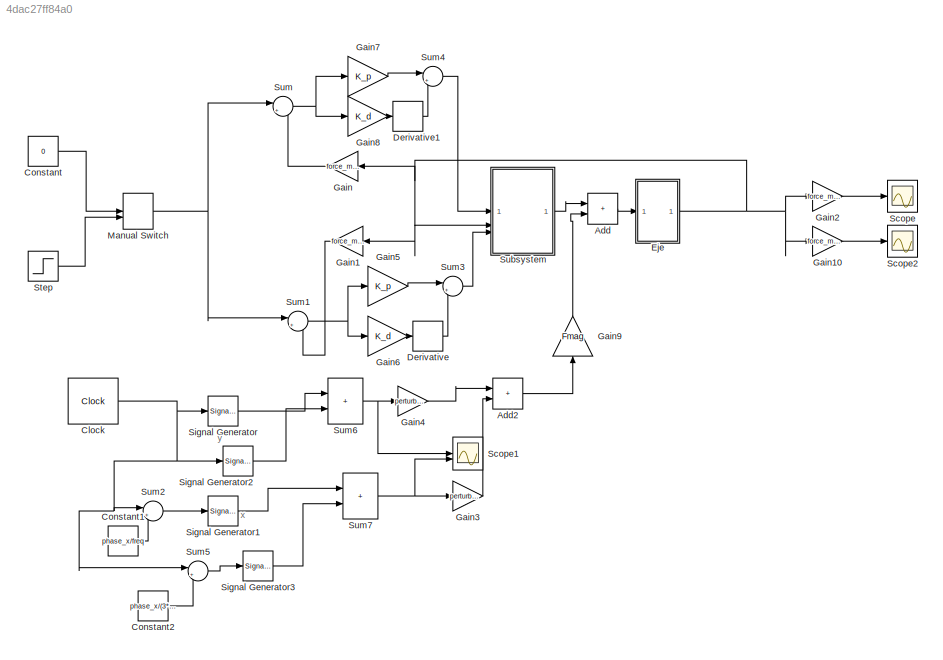
MODEL slx_4dac27ff84a0
KIND model
CONFIG AbsTol = auto
CONFIG EnableMultiTasking = off
CONFIG FixedStep = auto
CONFIG MaxStep = auto
CONFIG MinStep = auto
CONFIG RelTol = 1e-3
CONFIG SampleTimeConstraint = Unconstrained
CONFIG SolverName = VariableStepAuto
CONFIG StartTime = 0.0
CONFIG StopTime = 1
BLOCK [Sum] Add
  IconShape = rectangular
BLOCK [Sum] Add2
  IconShape = rectangular
BLOCK [Clock] Clock
  Decimation = 100
  DisplayTime = on
BLOCK [Constant] Constant
  Value = 0
BLOCK [Constant] Constant1
  Value = phase_x/freq
BLOCK [Constant] Constant2
  Value = phase_x/(3*freq)
BLOCK [Derivative] Derivative
BLOCK [Derivative] Derivative1
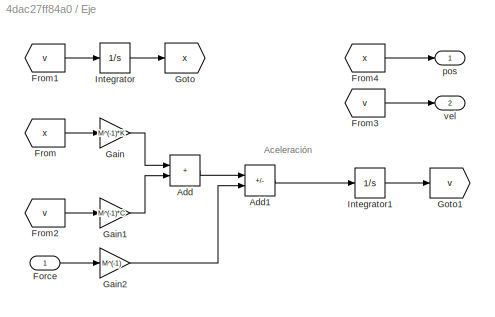
BLOCK [SubSystem] Eje
BLOCK [Sum] Eje/Add
  IconShape = rectangular
BLOCK [Sum] Eje/Add1
  IconShape = rectangular
  Inputs = -+
BLOCK [Inport] Eje/Force
BLOCK [From] Eje/From
  GotoTag = x
BLOCK [From] Eje/From1
  GotoTag = v
BLOCK [From] Eje/From2
  GotoTag = v
BLOCK [From] Eje/From3
  GotoTag = v
BLOCK [From] Eje/From4
  GotoTag = x
BLOCK [Gain] Eje/Gain
  Gain = M^(-1)*K
  Multiplication = Matrix(K*u)
BLOCK [Gain] Eje/Gain1
  Gain = M^(-1)*C
  Multiplication = Matrix(K*u)
BLOCK [Gain] Eje/Gain2
  Gain = M^(-1)
  Multiplication = Matrix(K*u) (u vector)
BLOCK [Goto] Eje/Goto
  GotoTag = x
BLOCK [Goto] Eje/Goto1
  GotoTag = v
BLOCK [Integrator] Eje/Integrator
BLOCK [Integrator] Eje/Integrator1
BLOCK [Outport] Eje/pos
BLOCK [Outport] Eje/vel
  Port = 2
BLOCK [Gain] Gain
  Gain = force_mask_x'
  Multiplication = Matrix(K*u)
  NameLocation = top
BLOCK [Gain] Gain1
  Gain = force_mask_y'
  Multiplication = Matrix(K*u)
  NameLocation = top
BLOCK [Gain] Gain10
  Gain = force_mask_y'
  Multiplication = Matrix(K*u)
BLOCK [Gain] Gain2
  Gain = force_mask_x'
  Multiplication = Matrix(K*u)
BLOCK [Gain] Gain3
  Gain = perturbation_mask_x
  Multiplication = Matrix(K*u)
BLOCK [Gain] Gain4
  Gain = perturbation_mask_y
  Multiplication = Matrix(K*u)
BLOCK [Gain] Gain5
  Gain = K_p
BLOCK [Gain] Gain6
  Gain = K_d
BLOCK [Gain] Gain7
  Gain = K_p
BLOCK [Gain] Gain8
  Gain = K_d
BLOCK [Gain] Gain9
  Gain = Fmag
  NameLocation = right
BLOCK [ManualSwitch] Manual Switch
BLOCK [Scope] Scope
  Floating = off
  NumInputPorts = 1
  ScopeSpecificationString = Simulink.scopes.TimeScopeBlockCfg('CurrentConfiguration', extmgr.ConfigurationSet(extmgr.Configuration('Core','General UI',true),extmgr.Configuration('Core','Source UI',true),extmgr.Configuration('Sources','WiredSimulink',true),extmgr.Configuration('Visuals','Time Domain',true,'SerializedDisplays',{struct('MinYLimReal','-0.0000001','MaxYLimReal','0.0000001','YLabelReal','','MinYLimMag','0.00000000...<+1417ch>
BLOCK [Scope] Scope1
  Floating = off
  NumInputPorts = 2
  ScopeSpecificationString = Simulink.scopes.TimeScopeBlockCfg('CurrentConfiguration', extmgr.ConfigurationSet(extmgr.Configuration('Core','General UI',true),extmgr.Configuration('Core','Source UI',true),extmgr.Configuration('Sources','WiredSimulink',true,'DataLoggingVariableName','ScopeData1'),extmgr.Configuration('Visuals','Time Domain',true,'SerializedDisplays',{struct('MinYLimReal','-1.34479','MaxYLimReal','1.34479','YLab...<+1444ch>
BLOCK [Scope] Scope2
  Floating = off
  NumInputPorts = 1
  ScopeSpecificationString = Simulink.scopes.TimeScopeBlockCfg('CurrentConfiguration', extmgr.ConfigurationSet(extmgr.Configuration('Core','General UI',true),extmgr.Configuration('Core','Source UI',true),extmgr.Configuration('Sources','WiredSimulink',true,'DataLoggingVariableName','ScopeData2'),extmgr.Configuration('Visuals','Time Domain',true,'SerializedDisplays',{struct('MinYLimReal','-1.00000','MaxYLimReal','1.00000','YLab...<+1439ch>
BLOCK [SignalGenerator] Signal Generator
  Frequency = freq
  TimeSource = Use external signal
BLOCK [SignalGenerator] Signal Generator1
  Amplitude = 0.5
  Frequency = freq
  TimeSource = Use external signal
BLOCK [SignalGenerator] Signal Generator2
  Amplitude = 0.5
  Frequency = freq*3
  TimeSource = Use external signal
BLOCK [SignalGenerator] Signal Generator3
  Amplitude = 0.5
  Frequency = freq*3
  TimeSource = Use external signal
BLOCK [Step] Step
  SampleTime = 0
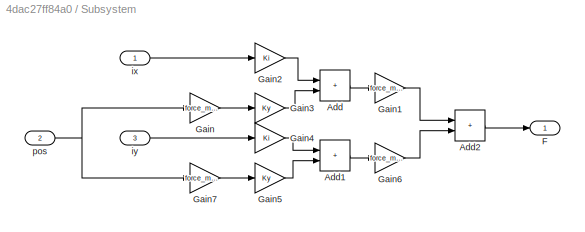
BLOCK [SubSystem] Subsystem
BLOCK [Sum] Subsystem/Add
  IconShape = rectangular
BLOCK [Sum] Subsystem/Add1
  IconShape = rectangular
BLOCK [Sum] Subsystem/Add2
  IconShape = rectangular
BLOCK [Outport] Subsystem/F
BLOCK [Gain] Subsystem/Gain
  Gain = force_mask_x'
  Multiplication = Matrix(K*u)
BLOCK [Gain] Subsystem/Gain1
  Gain = force_mask_x
BLOCK [Gain] Subsystem/Gain2
  Gain = Ki
BLOCK [Gain] Subsystem/Gain3
  Gain = Ky
BLOCK [Gain] Subsystem/Gain4
  Gain = Ki
BLOCK [Gain] Subsystem/Gain5
  Gain = Ky
BLOCK [Gain] Subsystem/Gain6
  Gain = force_mask_y
BLOCK [Gain] Subsystem/Gain7
  Gain = force_mask_y'
  Multiplication = Matrix(K*u)
BLOCK [Inport] Subsystem/ix
BLOCK [Inport] Subsystem/iy
  Port = 3
BLOCK [Inport] Subsystem/pos
  Port = 2
BLOCK [Sum] Sum
  Inputs = |+-
BLOCK [Sum] Sum1
  Inputs = |+-
BLOCK [Sum] Sum2
  Inputs = |++
BLOCK [Sum] Sum3
  Inputs = |++
BLOCK [Sum] Sum4
  Inputs = |++
BLOCK [Sum] Sum5
  Inputs = |++
BLOCK [Sum] Sum6
  IconShape = rectangular
  Inputs = |++
BLOCK [Sum] Sum7
  IconShape = rectangular
  Inputs = |++
ANNOTATION (root): x
ANNOTATION (root): y
ANNOTATION Eje: Aceleración
LINE Add2:1 -> Gain9:1
LINE Add:1 -> Eje:1
NET Clock:1 -> Signal Generator2:1, Signal Generator:1, Sum2:1, Sum5:1
LINE Constant1:1 -> Sum2:2
LINE Constant2:1 -> Sum5:2
LINE Constant:1 -> Manual Switch:1
LINE Derivative1:1 -> Sum4:2
LINE Derivative:1 -> Sum3:2
LINE Eje/Add1:1 -> Eje/Integrator1:1
LINE Eje/Add:1 -> Eje/Add1:1
LINE Eje/Force:1 -> Eje/Gain2:1
LINE Eje/From1:1 -> Eje/Integrator:1
LINE Eje/From2:1 -> Eje/Gain1:1
LINE Eje/From3:1 -> Eje/vel:1
LINE Eje/From4:1 -> Eje/pos:1
LINE Eje/From:1 -> Eje/Gain:1
LINE Eje/Gain1:1 -> Eje/Add:2
LINE Eje/Gain2:1 -> Eje/Add1:2
LINE Eje/Gain:1 -> Eje/Add:1
LINE Eje/Integrator1:1 -> Eje/Goto1:1
LINE Eje/Integrator:1 -> Eje/Goto:1
NET Eje:1 -> Gain10:1, Gain1:1, Gain2:1, Gain:1, Subsystem:2
LINE Gain10:1 -> Scope2:1
LINE Gain1:1 -> Sum1:2
LINE Gain2:1 -> Scope:1
LINE Gain3:1 -> Add2:2
LINE Gain4:1 -> Add2:1
LINE Gain5:1 -> Sum3:1
LINE Gain6:1 -> Derivative:1
LINE Gain7:1 -> Sum4:1
LINE Gain8:1 -> Derivative1:1
LINE Gain9:1 -> Add:2
LINE Gain:1 -> Sum:2
NET Manual Switch:1 -> Sum1:1, Sum:1
LINE Signal Generator1:1 -> Sum7:1
LINE Signal Generator2:1 -> Sum6:2
LINE Signal Generator3:1 -> Sum7:2
LINE Signal Generator:1 -> Sum6:1
LINE Step:1 -> Manual Switch:2
LINE Subsystem/Add1:1 -> Subsystem/Gain6:1
LINE Subsystem/Add2:1 -> Subsystem/F:1
LINE Subsystem/Add:1 -> Subsystem/Gain1:1
LINE Subsystem/Gain1:1 -> Subsystem/Add2:1
LINE Subsystem/Gain2:1 -> Subsystem/Add:1
LINE Subsystem/Gain3:1 -> Subsystem/Add:2
LINE Subsystem/Gain4:1 -> Subsystem/Add1:1
LINE Subsystem/Gain5:1 -> Subsystem/Add1:2
LINE Subsystem/Gain6:1 -> Subsystem/Add2:2
LINE Subsystem/Gain7:1 -> Subsystem/Gain5:1
LINE Subsystem/Gain:1 -> Subsystem/Gain3:1
LINE Subsystem/ix:1 -> Subsystem/Gain2:1
LINE Subsystem/iy:1 -> Subsystem/Gain4:1
NET Subsystem/pos:1 -> Subsystem/Gain7:1, Subsystem/Gain:1
LINE Subsystem:1 -> Add:1
NET Sum1:1 -> Gain5:1, Gain6:1
LINE Sum2:1 -> Signal Generator1:1
LINE Sum3:1 -> Subsystem:3
LINE Sum4:1 -> Subsystem:1
LINE Sum5:1 -> Signal Generator3:1
NET Sum6:1 -> Gain4:1, Scope1:1
NET Sum7:1 -> Gain3:1, Scope1:2
NET Sum:1 -> Gain7:1, Gain8:1
note: NET lines group one-source signal fan-out (src -> all destinations, sorted); 1:1 wires keep LINE
